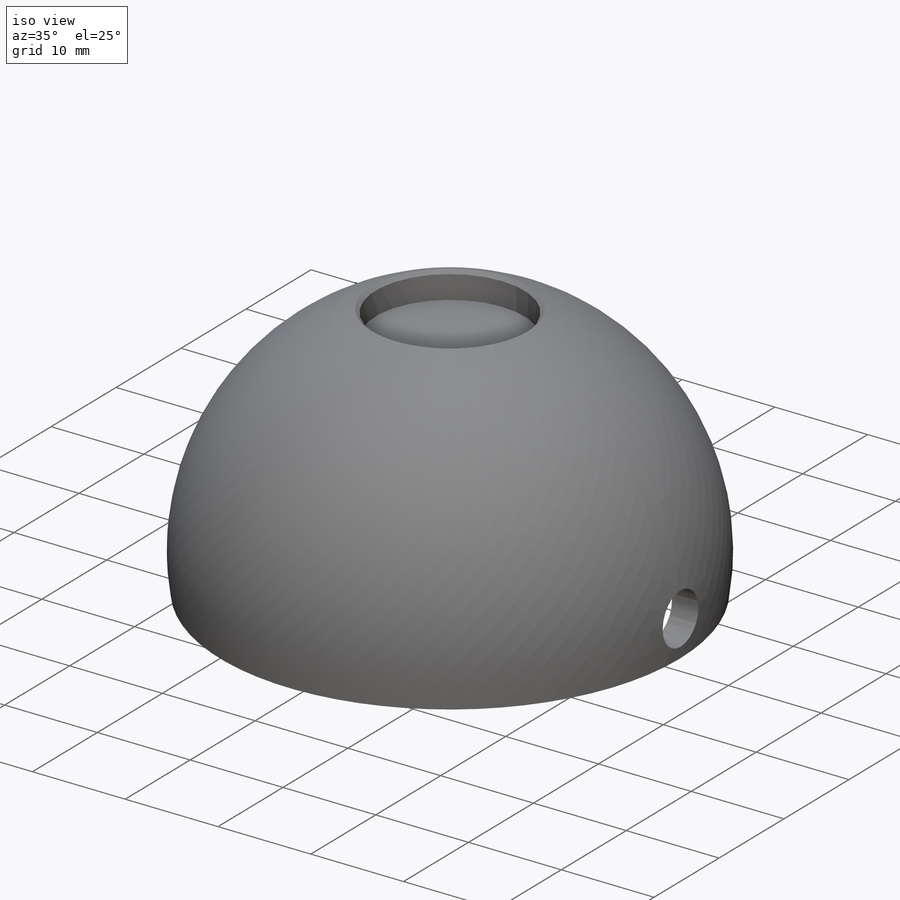
[diagram: iso view]
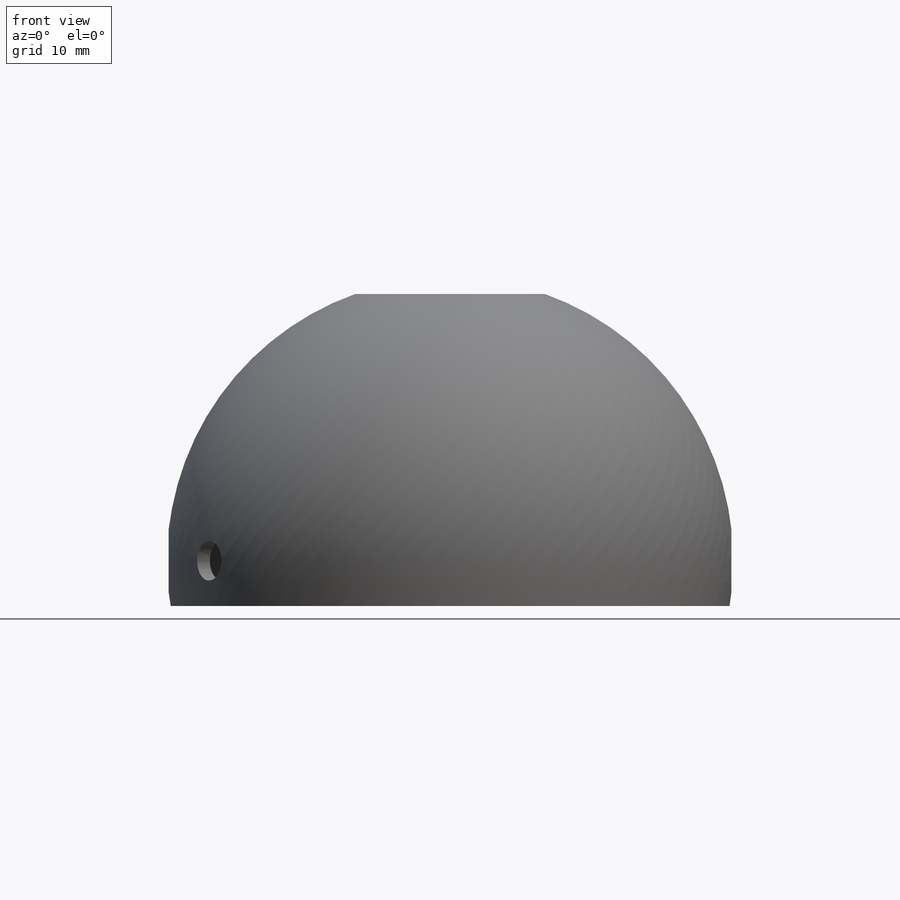
[diagram: front view]
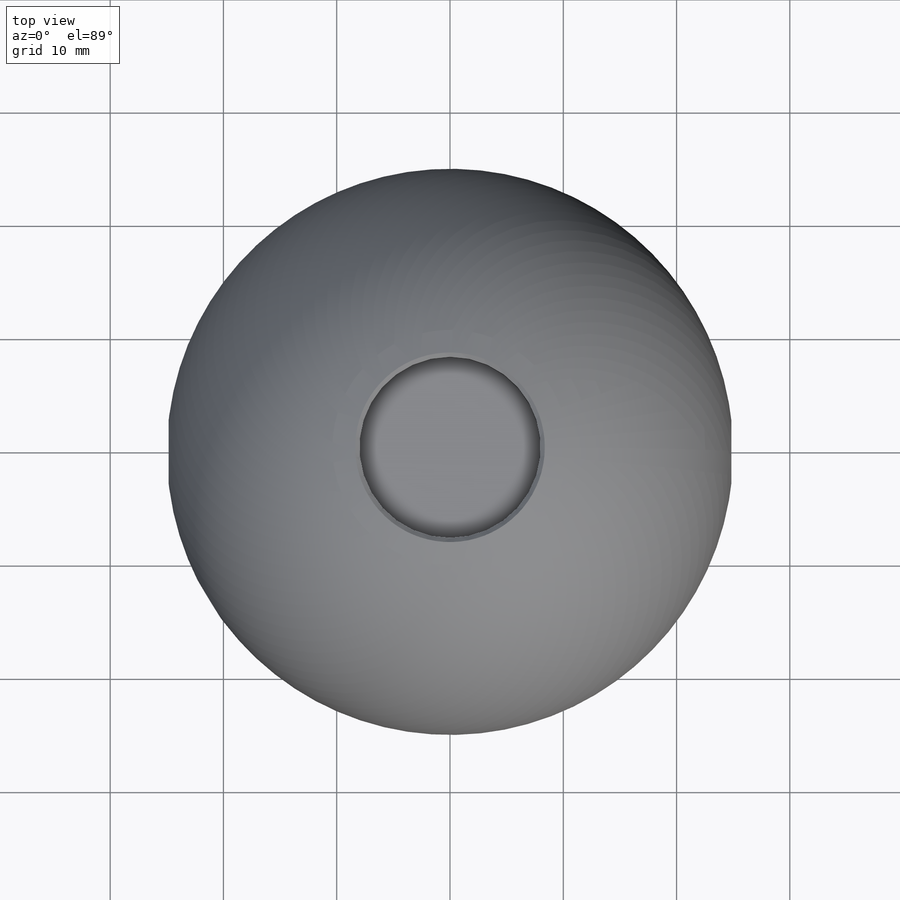
[diagram: top view]
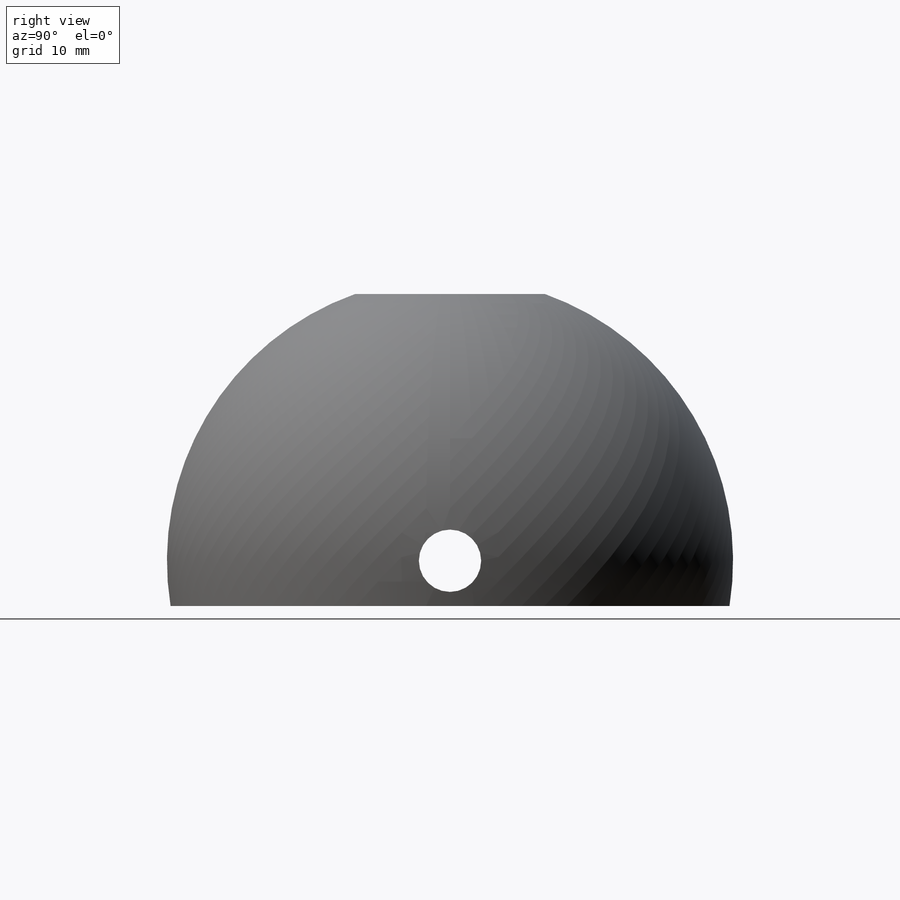
[diagram: right view]
SOLIDWORKS PART (.sldprt)
format: sldprt  version: not decoded by parser v0  size: 360,448 bytes
history: native  units: mm
features: sketch x8, cut_extrude x4, chamfer x4, extrude x3, plane x2, material x1, revolve x1, mirror x1, fillet x1 (+12 scaffold rows collapsed)
feature tree (37):
  scaffold x12  (default folders/planes/origin — collapsed)
  material  "Material <not specified>"
  sketch  "Sketch2"  dims[c1.D4=25.0mm c1.D1=1.5mm c1.D2=16.0mm c1.D3=3.0mm c2.D4=~20.56224mm c3.D4=45.0deg c3.D5=50.0mm c3.D6=1.0mm c4.D5=4.0mm]
  revolve  "Revolve1"  Angle=360deg
  sketch  "Sketch4"  dims[D1=10.0mm D2=15.0mm]
  extrude  "Boss-Extrude1"  Depth=22mm
  sketch  "Sketch5"  dims[D1=5.5mm]
  cut_extrude  "Cut-Extrude1"  [1 undecoded]
  chamfer  "Chamfer1"  Distance=1mm Angle=45deg
  mirror  "Mirror1"
  chamfer  "Chamfer2"  Distance=0.5mm Angle=45deg
  plane  "Plane1"  Offset=5.5mm
  sketch  "Sketch7"  dims[D1=3.2mm D2=4.0mm D3=13.0mm D4=8.0mm D5=4.0mm]
  extrude  "Boss-Extrude2"  [1 undecoded]
  sketch  "Sketch8"  dims[D1=3.5mm]
  cut_extrude  "Cut-Extrude2"  [1 undecoded]
  fillet  "Fillet1"  Radius=4mm
  sketch  "Sketch9"
  extrude  "Boss-Extrude3"  Depth=1.5mm
  chamfer  "Chamfer5"  Distance=1.5mm Angle=45deg
  plane  "Plane2"  Offset=7mm
  sketch  "Sketch10"  dims[D1=6.0mm D2=4.0mm]
  cut_extrude  "Cut-Extrude3"  Depth=3mm
  sketch  "Sketch11"  dims[D1=2.0mm]
  cut_extrude  "Cut-Extrude4"  [1 undecoded]
  chamfer  "Chamfer6"  Distance=1mm Angle=45deg
decode coverage: 16 of 22 modeling features carry decoded parameters
note: ~ marks probable driven/reference dimensions
note: 4 parameter values undecoded
summary: no parameter record found for 4 features
note: suppression state not decoded; provenance and decode notes live in map.json
